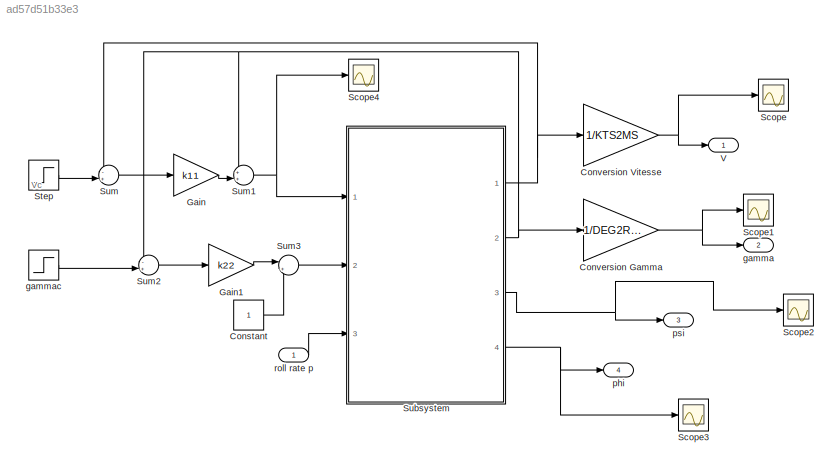
MODEL slx_ad57d51b33e3
KIND model
CONFIG AbsTol = auto
CONFIG EnableMultiTasking = on
CONFIG FixedStep = auto
CONFIG MaxStep = auto
CONFIG MinStep = auto
CONFIG RelTol = 1e-3
CONFIG SampleTimeConstraint = Unconstrained
CONFIG Solver = ode45
CONFIG SolverName = ode45
CONFIG StartTime = 0.0
CONFIG StopTime = 60.0
BLOCK [Constant] Constant
BLOCK [Gain] Conversion Gamma
  Gain = 1/DEG2RAD
  OutDataTypeStr = Inherit: Inherit via internal rule
  ParamDataTypeStr = Inherit: Inherit via internal rule
  SaturateOnIntegerOverflow = off
BLOCK [Gain] Conversion Vitesse
  Gain = 1/KTS2MS
  OutDataTypeStr = Inherit: Inherit via internal rule
  ParamDataTypeStr = Inherit: Inherit via internal rule
  SaturateOnIntegerOverflow = off
BLOCK [Gain] Gain
  Gain = k11
  OutDataTypeStr = Inherit: Inherit via internal rule
  ParamDataTypeStr = Inherit: Inherit via internal rule
  SaturateOnIntegerOverflow = off
BLOCK [Gain] Gain1
  Gain = k22
  OutDataTypeStr = Inherit: Inherit via internal rule
  ParamDataTypeStr = Inherit: Inherit via internal rule
  SaturateOnIntegerOverflow = off
BLOCK [Scope] Scope
  Floating = off
  NumInputPorts = 1
  Ports = [1]
  ScopeSpecificationString = Simulink.scopes.TimeScopeBlockCfg('CurrentConfiguration', extmgr.ConfigurationSet(extmgr.Configuration('Core','General UI',true),extmgr.Configuration('Core','Source UI',true),extmgr.Configuration('Sources','WiredSimulink',true),extmgr.Configuration('Visuals','Time Domain',true,'SerializedDisplays',{struct('MinYLimReal','129.99994','MaxYLimReal','130.00057','YLabelReal','','MinYLimMag','129.99994',...<+1401ch>
BLOCK [Scope] Scope1
  Floating = off
  NumInputPorts = 1
  Ports = [1]
  ScopeSpecificationString = Simulink.scopes.TimeScopeBlockCfg('CurrentConfiguration', extmgr.ConfigurationSet(extmgr.Configuration('Core','General UI',true),extmgr.Configuration('Core','Source UI',true),extmgr.Configuration('Sources','WiredSimulink',true,'DataLoggingVariableName','ScopeData1'),extmgr.Configuration('Visuals','Time Domain',true,'SerializedDisplays',{struct('MinYLimReal','-0.385','MaxYLimReal','3.46501','YLabel...<+1400ch>
BLOCK [Scope] Scope2
  Floating = off
  NumInputPorts = 1
  Ports = [1]
  ScopeSpecificationString = Simulink.scopes.TimeScopeBlockCfg('CurrentConfiguration', extmgr.ConfigurationSet(extmgr.Configuration('Core','General UI',true),extmgr.Configuration('Core','Source UI',true),extmgr.Configuration('Sources','WiredSimulink',true,'DataLoggingVariableName','ScopeData2'),extmgr.Configuration('Visuals','Time Domain',true,'SerializedDisplays',{struct('MinYLimReal','-1.00000','MaxYLimReal','1.00000','YLab...<+1370ch>
BLOCK [Scope] Scope3
  Floating = off
  NumInputPorts = 1
  Ports = [1]
  ScopeSpecificationString = Simulink.scopes.TimeScopeBlockCfg('CurrentConfiguration', extmgr.ConfigurationSet(extmgr.Configuration('Core','General UI',true),extmgr.Configuration('Core','Source UI',true),extmgr.Configuration('Sources','WiredSimulink',true,'DataLoggingVariableName','ScopeData3'),extmgr.Configuration('Visuals','Time Domain',true),extmgr.Configuration('Tools','Plot Navigation',true),extmgr.Configuration('Tools',...<+40ch>
BLOCK [Scope] Scope4
  Floating = off
  NumInputPorts = 1
  Ports = [1]
  ScopeSpecificationString = Simulink.scopes.TimeScopeBlockCfg('CurrentConfiguration', extmgr.ConfigurationSet(extmgr.Configuration('Core','General UI',true),extmgr.Configuration('Core','Source UI',true),extmgr.Configuration('Sources','WiredSimulink',true,'DataLoggingVariableName','ScopeData4'),extmgr.Configuration('Visuals','Time Domain',true,'SerializedDisplays',{struct('MinYLimReal','-0.00672','MaxYLimReal','0.06045','YLab...<+1411ch>
BLOCK [Step] Step
  After = Ve
  Before = Ve
  SampleTime = 0
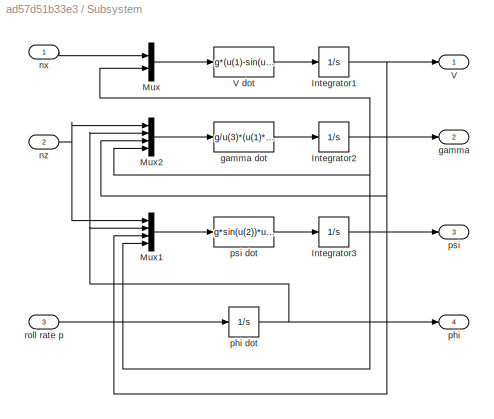
BLOCK [SubSystem] Subsystem
  Ports = [3, 4]
  RequestExecContextInheritance = off
BLOCK [Integrator] Subsystem/Integrator1
  InitialCondition = Vie + k*ze
  Ports = [1, 1]
BLOCK [Integrator] Subsystem/Integrator2
  InitialCondition = gammae
  Ports = [1, 1]
BLOCK [Integrator] Subsystem/Integrator3
  InitialCondition = psie
  Ports = [1, 1]
BLOCK [Mux] Subsystem/Mux
  DisplayOption = bar
  Inputs = 2
  Ports = [2, 1]
BLOCK [Mux] Subsystem/Mux1
  DisplayOption = bar
  Ports = [4, 1]
BLOCK [Mux] Subsystem/Mux2
  DisplayOption = bar
  Ports = [4, 1]
BLOCK [Outport] Subsystem/V
  IconDisplay = Port number
BLOCK [Fcn] Subsystem/V dot
  Expr = g*(u(1)-sin(u(2)))
BLOCK [Outport] Subsystem/gamma
  IconDisplay = Port number
  Port = 2
BLOCK [Fcn] Subsystem/gamma dot
  Expr = g/u(3)*(u(1)*cos(u(2))-cos(u(4)))
BLOCK [Inport] Subsystem/nx
  IconDisplay = Port number
BLOCK [Inport] Subsystem/nz
  IconDisplay = Port number
  Port = 2
BLOCK [Outport] Subsystem/phi
  IconDisplay = Port number
  Port = 4
BLOCK [Integrator] Subsystem/phi dot
  InitialCondition = phie
  Ports = [1, 1]
BLOCK [Outport] Subsystem/psi
  IconDisplay = Port number
  Port = 3
BLOCK [Fcn] Subsystem/psi dot
  Expr = g*sin(u(2))*u(1)/(u(3)*cos(u(4)))
BLOCK [Inport] Subsystem/roll rate p
  IconDisplay = Port number
  Port = 3
BLOCK [Sum] Sum
  IconShape = round
  InputSameDT = off
  Inputs = -+|
  OutDataTypeStr = Inherit: Inherit via internal rule
  Ports = [2, 1]
  SaturateOnIntegerOverflow = off
BLOCK [Sum] Sum1
  IconShape = round
  InputSameDT = off
  Inputs = ++|
  OutDataTypeStr = Inherit: Inherit via internal rule
  Ports = [2, 1]
  SaturateOnIntegerOverflow = off
BLOCK [Sum] Sum2
  IconShape = round
  InputSameDT = off
  Inputs = -+|
  OutDataTypeStr = Inherit: Inherit via internal rule
  Ports = [2, 1]
  SaturateOnIntegerOverflow = off
BLOCK [Sum] Sum3
  IconShape = round
  InputSameDT = off
  Inputs = |++
  OutDataTypeStr = Inherit: Inherit via internal rule
  Ports = [2, 1]
  SaturateOnIntegerOverflow = off
BLOCK [Outport] V
  IconDisplay = Port number
BLOCK [Outport] gamma
  IconDisplay = Port number
  Port = 2
BLOCK [Step] gammac 
  After = 3*DEG2RAD
  SampleTime = 0
  Time = 10
BLOCK [Outport] phi
  IconDisplay = Port number
  Port = 4
BLOCK [Outport] psi
  IconDisplay = Port number
  Port = 3
BLOCK [Inport] roll rate p
  IconDisplay = Port number
ANNOTATION (root): Vc
LINE Constant:1 -> Sum3:2
NET Conversion Gamma:1 -> Scope1:1, gamma:1
NET Conversion Vitesse:1 -> Scope:1, V:1
LINE Gain1:1 -> Sum3:1
LINE Gain:1 -> Sum1:2
LINE Step:1 -> Sum:2
NET Subsystem/Integrator1:1 -> Subsystem/Mux1:3, Subsystem/Mux2:3, Subsystem/V:1
NET Subsystem/Integrator2:1 -> Subsystem/Mux1:4, Subsystem/Mux2:4, Subsystem/Mux:2, Subsystem/gamma:1
LINE Subsystem/Integrator3:1 -> Subsystem/psi:1
LINE Subsystem/Mux1:1 -> Subsystem/psi dot:1
LINE Subsystem/Mux2:1 -> Subsystem/gamma dot:1
LINE Subsystem/Mux:1 -> Subsystem/V dot:1
LINE Subsystem/V dot:1 -> Subsystem/Integrator1:1
LINE Subsystem/gamma dot:1 -> Subsystem/Integrator2:1
LINE Subsystem/nx:1 -> Subsystem/Mux:1
NET Subsystem/nz:1 -> Subsystem/Mux1:1, Subsystem/Mux2:1
NET Subsystem/phi dot:1 -> Subsystem/Mux1:2, Subsystem/Mux2:2, Subsystem/phi:1
LINE Subsystem/psi dot:1 -> Subsystem/Integrator3:1
LINE Subsystem/roll rate p:1 -> Subsystem/phi dot:1
NET Subsystem:1 -> Conversion Vitesse:1, Sum:1
NET Subsystem:2 -> Conversion Gamma:1, Sum1:1, Sum2:1
NET Subsystem:3 -> Scope2:1, psi:1
NET Subsystem:4 -> Scope3:1, phi:1
NET Sum1:1 -> Scope4:1, Subsystem:1
LINE Sum2:1 -> Gain1:1
LINE Sum3:1 -> Subsystem:2
LINE Sum:1 -> Gain:1
LINE gammac :1 -> Sum2:2
LINE roll rate p:1 -> Subsystem:3
note: NET lines group one-source signal fan-out (src -> all destinations, sorted); 1:1 wires keep LINE
